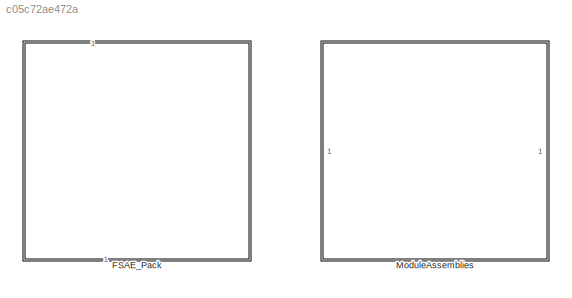
MODEL slx_c05c72ae472a
KIND library
CONFIG AbsTol = auto
CONFIG EnableMultiTasking = off
CONFIG FixedStep = auto
CONFIG MaxStep = auto
CONFIG MinStep = auto
CONFIG RelTol = 1e-3
CONFIG SampleTimeConstraint = Unconstrained
CONFIG SolverName = VariableStepAuto
CONFIG StartTime = 0.0
CONFIG StopTime = 10.0
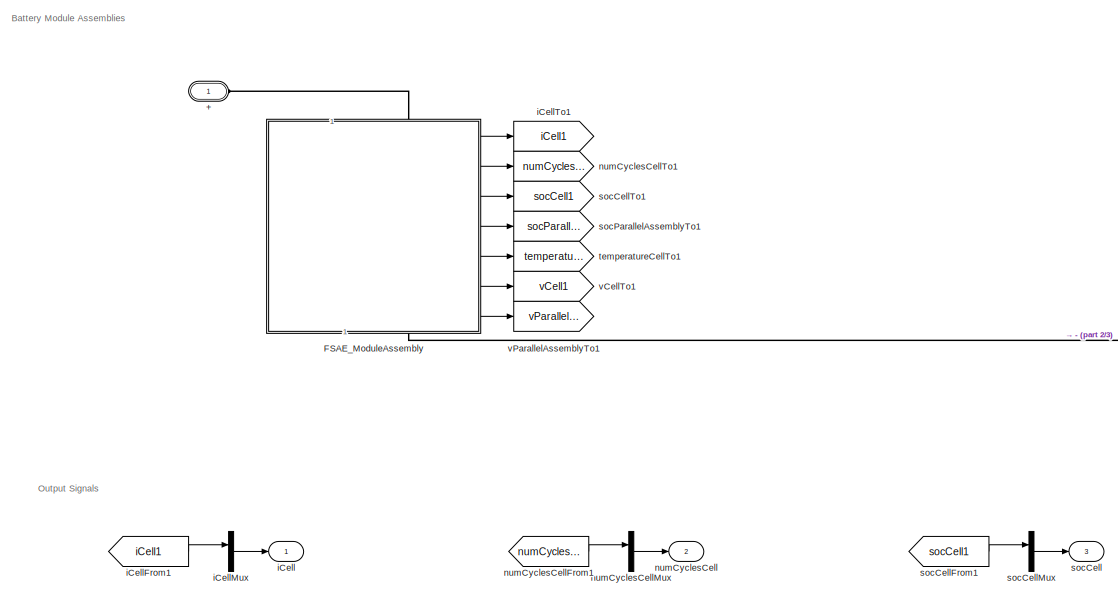
[diagram: FSAE_Pack - part 1/3, left side, full height]
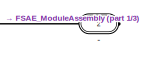
[diagram: FSAE_Pack - part 2/3, top right region]
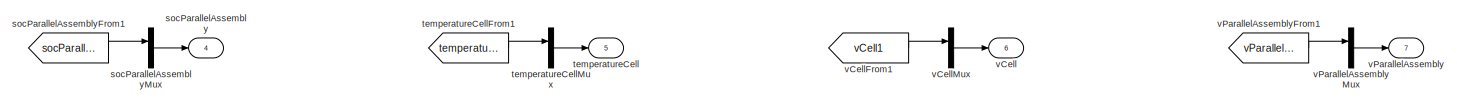
[diagram: FSAE_Pack - part 3/3, bottom right region]
BLOCK [SubSystem] FSAE_Pack
  CopyFcn = battery_builder_rtmsupport('copyfcn',gcbh);
  LoadFcn = battery_builder_rtmsupport('loadfcn',gcbh);
  PortSchema = {"entries":[{"content":{"sides":[{"content":{"connectorIds":["LConn1"]},"type":"ConnectorPlacement.EquallySpacedRectSide","uuid":"046e1df9-68b7-4628-9ede-02f17a769c41"},{"content":{"connectorIds":["RConn1"],"side":"RIGHT"},"type":"ConnectorPlacement.EquallySpacedRectSide","uuid":"785be2e1-0334-4cfd-9311-2715d0bed7f8"},{"content":{"side":"TOP"},"type":"ConnectorPlacement.EquallySpacedRectSide","uui...<+419ch>  <repeated x3 — deduplicated; at blocks: FSAE_Pack, FSAE_ModuleAssembly, ModuleAssemblyType1>
  PreCopyFcn = battery_builder_rtmsupport('precopyfcn',gcbh);
  PreDeleteFcn = battery_builder_rtmsupport('predeletefcn',gcbh);
BLOCK [PMIOPort] FSAE_Pack/+
  Side = Left
BLOCK [PMIOPort] FSAE_Pack/-
  Port = 2
  Side = Right
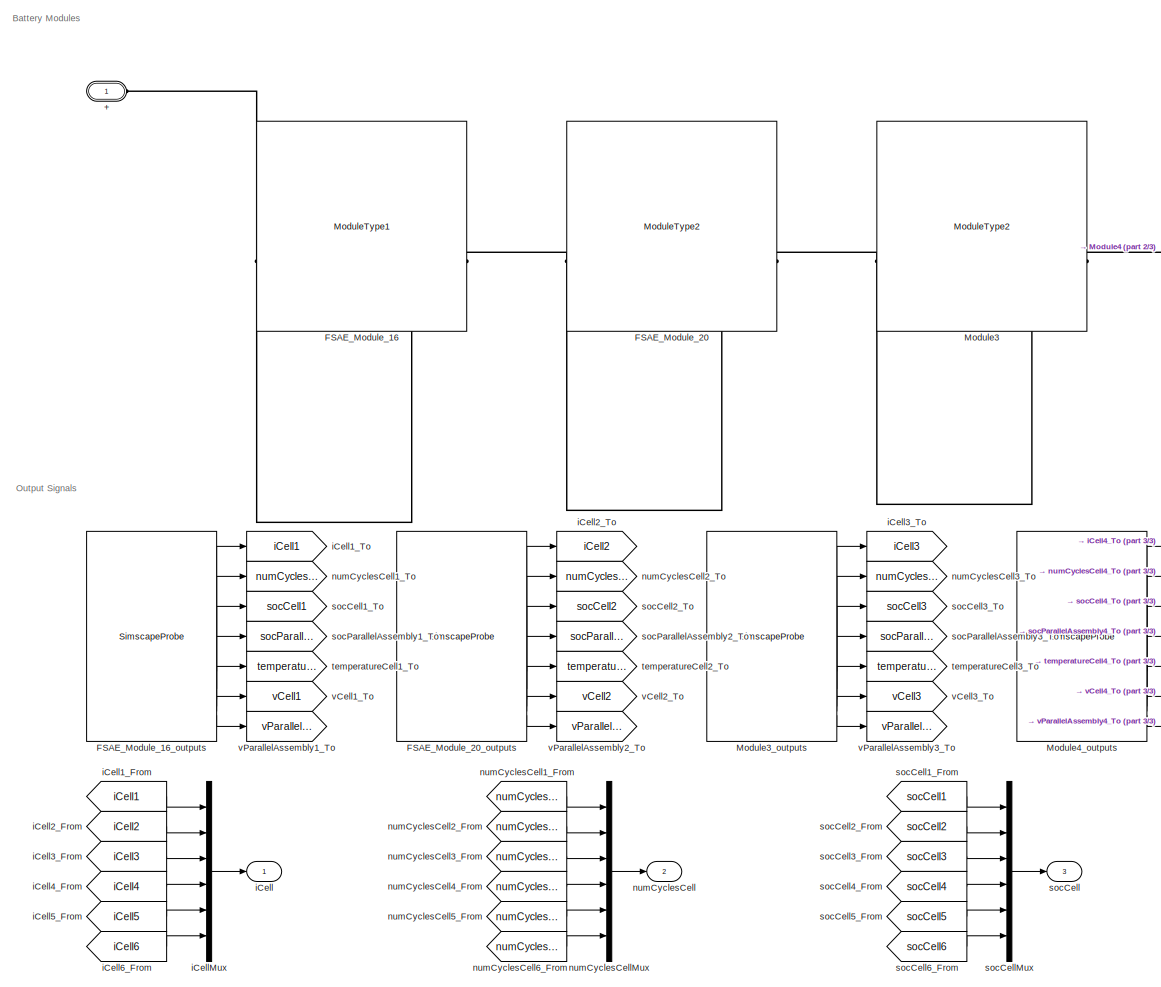
[diagram: FSAE_Pack/FSAE_ModuleAssembly - part 1/3, left side, full height]
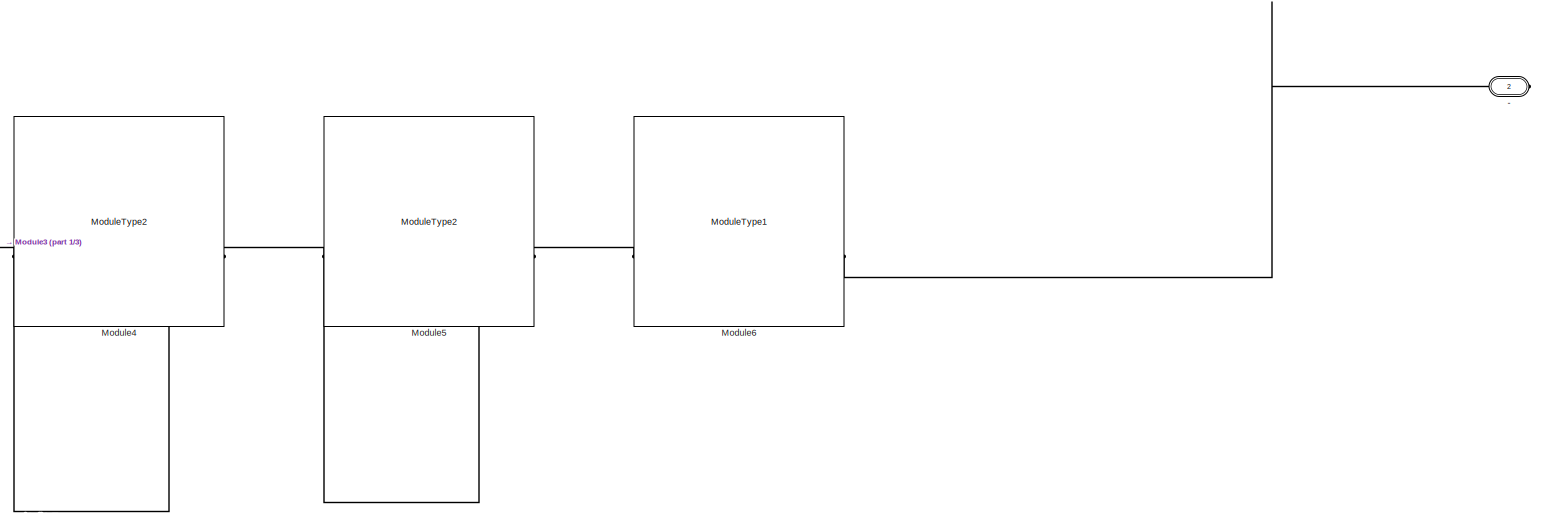
[diagram: FSAE_Pack/FSAE_ModuleAssembly - part 2/3, top right region]
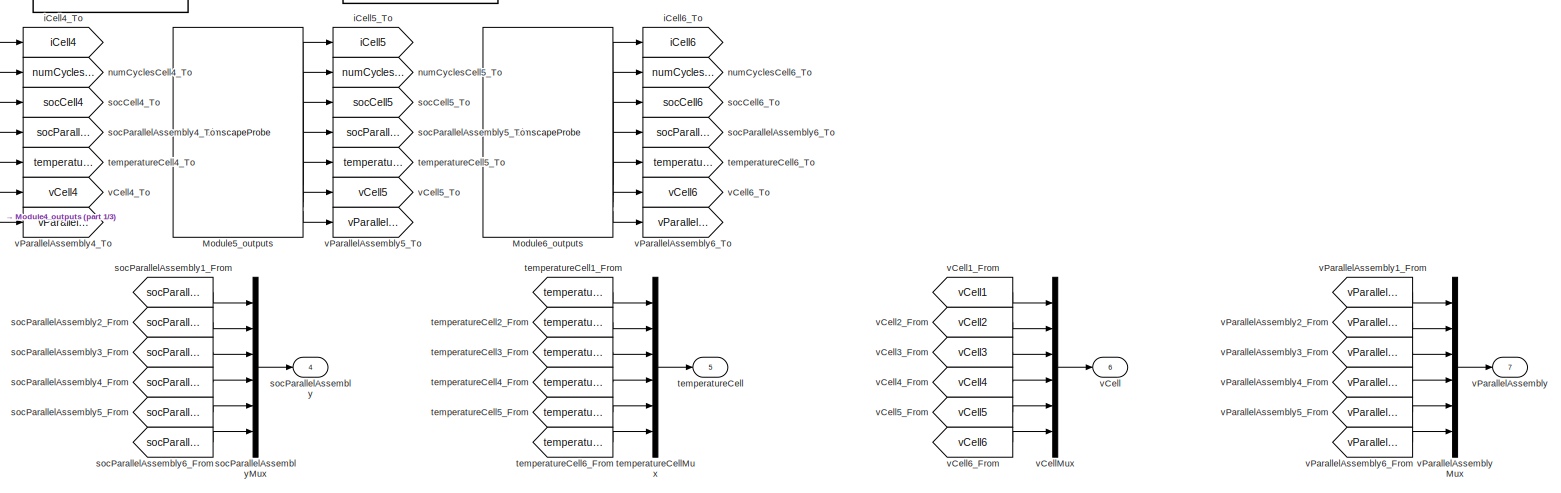
[diagram: FSAE_Pack/FSAE_ModuleAssembly - part 3/3, bottom right region]
BLOCK [SubSystem] FSAE_Pack/FSAE_ModuleAssembly
  CopyFcn = battery_builder_rtmsupport('copyfcn',gcbh);
  LoadFcn = battery_builder_rtmsupport('loadfcn',gcbh);
  PreCopyFcn = battery_builder_rtmsupport('precopyfcn',gcbh);
  PreDeleteFcn = battery_builder_rtmsupport('predeletefcn',gcbh);
BLOCK [PMIOPort] FSAE_Pack/FSAE_ModuleAssembly/+
  Side = Left
BLOCK [PMIOPort] FSAE_Pack/FSAE_ModuleAssembly/-
  Port = 2
  Side = Right
BLOCK [Reference] FSAE_Pack/FSAE_ModuleAssembly/FSAE_Module_16  REF=FSAE_Battery_lib/Modules/ModuleType1
  SourceBlock = FSAE_Battery_lib/Modules/ModuleType1
  SourceType = ModuleType1
BLOCK [SimscapeProbe] FSAE_Pack/FSAE_ModuleAssembly/FSAE_Module_16_outputs
  BoundBlock = 119
  Variables = {"iCell":{"Unit":"A","PortLabel":"iCell","Probing":"ON"},"numCyclesCell":{"Unit":"1","PortLabel":"numCyclesCell","Probing":"ON"},"socCell":{"Unit":"1","PortLabel":"socCell","Probing":"ON"},"socParallelAssembly":{"Unit":"1","PortLabel":"socParallelAssembly","Probing":"ON"},"temperatureCell":{"Unit":"K","PortLabel":"temperatureCell","Probing":"ON"},"vCell":{"Unit":"V","PortLabel":"vCell","Probing":"...<+85ch>  <repeated x12 — deduplicated; at blocks: FSAE_Module_16_outputs, FSAE_Module_20_outputs, Module3_outputs, Module4_outputs, Module5_outputs, Module6_outputs>
BLOCK [Reference] FSAE_Pack/FSAE_ModuleAssembly/FSAE_Module_20  REF=FSAE_Battery_lib/Modules/ModuleType2
  SourceBlock = FSAE_Battery_lib/Modules/ModuleType2
  SourceType = ModuleType2
BLOCK [SimscapeProbe] FSAE_Pack/FSAE_ModuleAssembly/FSAE_Module_20_outputs
  BoundBlock = 121
BLOCK [Reference] FSAE_Pack/FSAE_ModuleAssembly/Module3  REF=FSAE_Battery_lib/Modules/ModuleType2
  SourceBlock = FSAE_Battery_lib/Modules/ModuleType2
  SourceType = ModuleType2
BLOCK [SimscapeProbe] FSAE_Pack/FSAE_ModuleAssembly/Module3_outputs
  BoundBlock = 123
BLOCK [Reference] FSAE_Pack/FSAE_ModuleAssembly/Module4  REF=FSAE_Battery_lib/Modules/ModuleType2
  SourceBlock = FSAE_Battery_lib/Modules/ModuleType2
  SourceType = ModuleType2
BLOCK [SimscapeProbe] FSAE_Pack/FSAE_ModuleAssembly/Module4_outputs
  BoundBlock = 125
BLOCK [Reference] FSAE_Pack/FSAE_ModuleAssembly/Module5  REF=FSAE_Battery_lib/Modules/ModuleType2
  SourceBlock = FSAE_Battery_lib/Modules/ModuleType2
  SourceType = ModuleType2
BLOCK [SimscapeProbe] FSAE_Pack/FSAE_ModuleAssembly/Module5_outputs
  BoundBlock = 127
BLOCK [Reference] FSAE_Pack/FSAE_ModuleAssembly/Module6  REF=FSAE_Battery_lib/Modules/ModuleType1
  SourceBlock = FSAE_Battery_lib/Modules/ModuleType1
  SourceType = ModuleType1
BLOCK [SimscapeProbe] FSAE_Pack/FSAE_ModuleAssembly/Module6_outputs
  BoundBlock = 129
BLOCK [Outport] FSAE_Pack/FSAE_ModuleAssembly/iCell
BLOCK [From] FSAE_Pack/FSAE_ModuleAssembly/iCell1_From
  GotoTag = iCell1
BLOCK [Goto] FSAE_Pack/FSAE_ModuleAssembly/iCell1_To
  GotoTag = iCell1
BLOCK [From] FSAE_Pack/FSAE_ModuleAssembly/iCell2_From
  GotoTag = iCell2
BLOCK [Goto] FSAE_Pack/FSAE_ModuleAssembly/iCell2_To
  GotoTag = iCell2
BLOCK [From] FSAE_Pack/FSAE_ModuleAssembly/iCell3_From
  GotoTag = iCell3
BLOCK [Goto] FSAE_Pack/FSAE_ModuleAssembly/iCell3_To
  GotoTag = iCell3
BLOCK [From] FSAE_Pack/FSAE_ModuleAssembly/iCell4_From
  GotoTag = iCell4
BLOCK [Goto] FSAE_Pack/FSAE_ModuleAssembly/iCell4_To
  GotoTag = iCell4
BLOCK [From] FSAE_Pack/FSAE_ModuleAssembly/iCell5_From
  GotoTag = iCell5
BLOCK [Goto] FSAE_Pack/FSAE_ModuleAssembly/iCell5_To
  GotoTag = iCell5
BLOCK [From] FSAE_Pack/FSAE_ModuleAssembly/iCell6_From
  GotoTag = iCell6
BLOCK [Goto] FSAE_Pack/FSAE_ModuleAssembly/iCell6_To
  GotoTag = iCell6
BLOCK [Mux] FSAE_Pack/FSAE_ModuleAssembly/iCellMux
  DisplayOption = bar
  Inputs = 6
BLOCK [Outport] FSAE_Pack/FSAE_ModuleAssembly/numCyclesCell
  Port = 2
BLOCK [From] FSAE_Pack/FSAE_ModuleAssembly/numCyclesCell1_From
  GotoTag = numCyclesCell1
BLOCK [Goto] FSAE_Pack/FSAE_ModuleAssembly/numCyclesCell1_To
  GotoTag = numCyclesCell1
BLOCK [From] FSAE_Pack/FSAE_ModuleAssembly/numCyclesCell2_From
  GotoTag = numCyclesCell2
BLOCK [Goto] FSAE_Pack/FSAE_ModuleAssembly/numCyclesCell2_To
  GotoTag = numCyclesCell2
BLOCK [From] FSAE_Pack/FSAE_ModuleAssembly/numCyclesCell3_From
  GotoTag = numCyclesCell3
BLOCK [Goto] FSAE_Pack/FSAE_ModuleAssembly/numCyclesCell3_To
  GotoTag = numCyclesCell3
BLOCK [From] FSAE_Pack/FSAE_ModuleAssembly/numCyclesCell4_From
  GotoTag = numCyclesCell4
BLOCK [Goto] FSAE_Pack/FSAE_ModuleAssembly/numCyclesCell4_To
  GotoTag = numCyclesCell4
BLOCK [From] FSAE_Pack/FSAE_ModuleAssembly/numCyclesCell5_From
  GotoTag = numCyclesCell5
BLOCK [Goto] FSAE_Pack/FSAE_ModuleAssembly/numCyclesCell5_To
  GotoTag = numCyclesCell5
BLOCK [From] FSAE_Pack/FSAE_ModuleAssembly/numCyclesCell6_From
  GotoTag = numCyclesCell6
BLOCK [Goto] FSAE_Pack/FSAE_ModuleAssembly/numCyclesCell6_To
  GotoTag = numCyclesCell6
BLOCK [Mux] FSAE_Pack/FSAE_ModuleAssembly/numCyclesCellMux
  DisplayOption = bar
  Inputs = 6
BLOCK [Outport] FSAE_Pack/FSAE_ModuleAssembly/socCell
  Port = 3
BLOCK [From] FSAE_Pack/FSAE_ModuleAssembly/socCell1_From
  GotoTag = socCell1
BLOCK [Goto] FSAE_Pack/FSAE_ModuleAssembly/socCell1_To
  GotoTag = socCell1
BLOCK [From] FSAE_Pack/FSAE_ModuleAssembly/socCell2_From
  GotoTag = socCell2
BLOCK [Goto] FSAE_Pack/FSAE_ModuleAssembly/socCell2_To
  GotoTag = socCell2
BLOCK [From] FSAE_Pack/FSAE_ModuleAssembly/socCell3_From
  GotoTag = socCell3
BLOCK [Goto] FSAE_Pack/FSAE_ModuleAssembly/socCell3_To
  GotoTag = socCell3
BLOCK [From] FSAE_Pack/FSAE_ModuleAssembly/socCell4_From
  GotoTag = socCell4
BLOCK [Goto] FSAE_Pack/FSAE_ModuleAssembly/socCell4_To
  GotoTag = socCell4
BLOCK [From] FSAE_Pack/FSAE_ModuleAssembly/socCell5_From
  GotoTag = socCell5
BLOCK [Goto] FSAE_Pack/FSAE_ModuleAssembly/socCell5_To
  GotoTag = socCell5
BLOCK [From] FSAE_Pack/FSAE_ModuleAssembly/socCell6_From
  GotoTag = socCell6
BLOCK [Goto] FSAE_Pack/FSAE_ModuleAssembly/socCell6_To
  GotoTag = socCell6
BLOCK [Mux] FSAE_Pack/FSAE_ModuleAssembly/socCellMux
  DisplayOption = bar
  Inputs = 6
BLOCK [Outport] FSAE_Pack/FSAE_ModuleAssembly/socParallelAssembly
  Port = 4
BLOCK [From] FSAE_Pack/FSAE_ModuleAssembly/socParallelAssembly1_From
  GotoTag = socParallelAssembly1
BLOCK [Goto] FSAE_Pack/FSAE_ModuleAssembly/socParallelAssembly1_To
  GotoTag = socParallelAssembly1
BLOCK [From] FSAE_Pack/FSAE_ModuleAssembly/socParallelAssembly2_From
  GotoTag = socParallelAssembly2
BLOCK [Goto] FSAE_Pack/FSAE_ModuleAssembly/socParallelAssembly2_To
  GotoTag = socParallelAssembly2
BLOCK [From] FSAE_Pack/FSAE_ModuleAssembly/socParallelAssembly3_From
  GotoTag = socParallelAssembly3
BLOCK [Goto] FSAE_Pack/FSAE_ModuleAssembly/socParallelAssembly3_To
  GotoTag = socParallelAssembly3
BLOCK [From] FSAE_Pack/FSAE_ModuleAssembly/socParallelAssembly4_From
  GotoTag = socParallelAssembly4
BLOCK [Goto] FSAE_Pack/FSAE_ModuleAssembly/socParallelAssembly4_To
  GotoTag = socParallelAssembly4
BLOCK [From] FSAE_Pack/FSAE_ModuleAssembly/socParallelAssembly5_From
  GotoTag = socParallelAssembly5
BLOCK [Goto] FSAE_Pack/FSAE_ModuleAssembly/socParallelAssembly5_To
  GotoTag = socParallelAssembly5
BLOCK [From] FSAE_Pack/FSAE_ModuleAssembly/socParallelAssembly6_From
  GotoTag = socParallelAssembly6
BLOCK [Goto] FSAE_Pack/FSAE_ModuleAssembly/socParallelAssembly6_To
  GotoTag = socParallelAssembly6
BLOCK [Mux] FSAE_Pack/FSAE_ModuleAssembly/socParallelAssemblyMux
  DisplayOption = bar
  Inputs = 6
BLOCK [Outport] FSAE_Pack/FSAE_ModuleAssembly/temperatureCell
  Port = 5
BLOCK [From] FSAE_Pack/FSAE_ModuleAssembly/temperatureCell1_From
  GotoTag = temperatureCell1
BLOCK [Goto] FSAE_Pack/FSAE_ModuleAssembly/temperatureCell1_To
  GotoTag = temperatureCell1
BLOCK [From] FSAE_Pack/FSAE_ModuleAssembly/temperatureCell2_From
  GotoTag = temperatureCell2
BLOCK [Goto] FSAE_Pack/FSAE_ModuleAssembly/temperatureCell2_To
  GotoTag = temperatureCell2
BLOCK [From] FSAE_Pack/FSAE_ModuleAssembly/temperatureCell3_From
  GotoTag = temperatureCell3
BLOCK [Goto] FSAE_Pack/FSAE_ModuleAssembly/temperatureCell3_To
  GotoTag = temperatureCell3
BLOCK [From] FSAE_Pack/FSAE_ModuleAssembly/temperatureCell4_From
  GotoTag = temperatureCell4
BLOCK [Goto] FSAE_Pack/FSAE_ModuleAssembly/temperatureCell4_To
  GotoTag = temperatureCell4
BLOCK [From] FSAE_Pack/FSAE_ModuleAssembly/temperatureCell5_From
  GotoTag = temperatureCell5
BLOCK [Goto] FSAE_Pack/FSAE_ModuleAssembly/temperatureCell5_To
  GotoTag = temperatureCell5
BLOCK [From] FSAE_Pack/FSAE_ModuleAssembly/temperatureCell6_From
  GotoTag = temperatureCell6
BLOCK [Goto] FSAE_Pack/FSAE_ModuleAssembly/temperatureCell6_To
  GotoTag = temperatureCell6
BLOCK [Mux] FSAE_Pack/FSAE_ModuleAssembly/temperatureCellMux
  DisplayOption = bar
  Inputs = 6
BLOCK [Outport] FSAE_Pack/FSAE_ModuleAssembly/vCell
  Port = 6
BLOCK [From] FSAE_Pack/FSAE_ModuleAssembly/vCell1_From
  GotoTag = vCell1
BLOCK [Goto] FSAE_Pack/FSAE_ModuleAssembly/vCell1_To
  GotoTag = vCell1
BLOCK [From] FSAE_Pack/FSAE_ModuleAssembly/vCell2_From
  GotoTag = vCell2
BLOCK [Goto] FSAE_Pack/FSAE_ModuleAssembly/vCell2_To
  GotoTag = vCell2
BLOCK [From] FSAE_Pack/FSAE_ModuleAssembly/vCell3_From
  GotoTag = vCell3
BLOCK [Goto] FSAE_Pack/FSAE_ModuleAssembly/vCell3_To
  GotoTag = vCell3
BLOCK [From] FSAE_Pack/FSAE_ModuleAssembly/vCell4_From
  GotoTag = vCell4
BLOCK [Goto] FSAE_Pack/FSAE_ModuleAssembly/vCell4_To
  GotoTag = vCell4
BLOCK [From] FSAE_Pack/FSAE_ModuleAssembly/vCell5_From
  GotoTag = vCell5
BLOCK [Goto] FSAE_Pack/FSAE_ModuleAssembly/vCell5_To
  GotoTag = vCell5
BLOCK [From] FSAE_Pack/FSAE_ModuleAssembly/vCell6_From
  GotoTag = vCell6
BLOCK [Goto] FSAE_Pack/FSAE_ModuleAssembly/vCell6_To
  GotoTag = vCell6
BLOCK [Mux] FSAE_Pack/FSAE_ModuleAssembly/vCellMux
  DisplayOption = bar
  Inputs = 6
BLOCK [Outport] FSAE_Pack/FSAE_ModuleAssembly/vParallelAssembly
  Port = 7
BLOCK [From] FSAE_Pack/FSAE_ModuleAssembly/vParallelAssembly1_From
  GotoTag = vParallelAssembly1
BLOCK [Goto] FSAE_Pack/FSAE_ModuleAssembly/vParallelAssembly1_To
  GotoTag = vParallelAssembly1
BLOCK [From] FSAE_Pack/FSAE_ModuleAssembly/vParallelAssembly2_From
  GotoTag = vParallelAssembly2
BLOCK [Goto] FSAE_Pack/FSAE_ModuleAssembly/vParallelAssembly2_To
  GotoTag = vParallelAssembly2
BLOCK [From] FSAE_Pack/FSAE_ModuleAssembly/vParallelAssembly3_From
  GotoTag = vParallelAssembly3
BLOCK [Goto] FSAE_Pack/FSAE_ModuleAssembly/vParallelAssembly3_To
  GotoTag = vParallelAssembly3
BLOCK [From] FSAE_Pack/FSAE_ModuleAssembly/vParallelAssembly4_From
  GotoTag = vParallelAssembly4
BLOCK [Goto] FSAE_Pack/FSAE_ModuleAssembly/vParallelAssembly4_To
  GotoTag = vParallelAssembly4
BLOCK [From] FSAE_Pack/FSAE_ModuleAssembly/vParallelAssembly5_From
  GotoTag = vParallelAssembly5
BLOCK [Goto] FSAE_Pack/FSAE_ModuleAssembly/vParallelAssembly5_To
  GotoTag = vParallelAssembly5
BLOCK [From] FSAE_Pack/FSAE_ModuleAssembly/vParallelAssembly6_From
  GotoTag = vParallelAssembly6
BLOCK [Goto] FSAE_Pack/FSAE_ModuleAssembly/vParallelAssembly6_To
  GotoTag = vParallelAssembly6
BLOCK [Mux] FSAE_Pack/FSAE_ModuleAssembly/vParallelAssemblyMux
  DisplayOption = bar
  Inputs = 6
BLOCK [Outport] FSAE_Pack/iCell
BLOCK [From] FSAE_Pack/iCellFrom1
  GotoTag = iCell1
BLOCK [Mux] FSAE_Pack/iCellMux
  DisplayOption = bar
  Inputs = 1
BLOCK [Goto] FSAE_Pack/iCellTo1
  GotoTag = iCell1
BLOCK [Outport] FSAE_Pack/numCyclesCell
  Port = 2
BLOCK [From] FSAE_Pack/numCyclesCellFrom1
  GotoTag = numCyclesCell1
BLOCK [Mux] FSAE_Pack/numCyclesCellMux
  DisplayOption = bar
  Inputs = 1
BLOCK [Goto] FSAE_Pack/numCyclesCellTo1
  GotoTag = numCyclesCell1
BLOCK [Outport] FSAE_Pack/socCell
  Port = 3
BLOCK [From] FSAE_Pack/socCellFrom1
  GotoTag = socCell1
BLOCK [Mux] FSAE_Pack/socCellMux
  DisplayOption = bar
  Inputs = 1
BLOCK [Goto] FSAE_Pack/socCellTo1
  GotoTag = socCell1
BLOCK [Outport] FSAE_Pack/socParallelAssembly
  Port = 4
BLOCK [From] FSAE_Pack/socParallelAssemblyFrom1
  GotoTag = socParallelAssembly1
BLOCK [Mux] FSAE_Pack/socParallelAssemblyMux
  DisplayOption = bar
  Inputs = 1
BLOCK [Goto] FSAE_Pack/socParallelAssemblyTo1
  GotoTag = socParallelAssembly1
BLOCK [Outport] FSAE_Pack/temperatureCell
  Port = 5
BLOCK [From] FSAE_Pack/temperatureCellFrom1
  GotoTag = temperatureCell1
BLOCK [Mux] FSAE_Pack/temperatureCellMux
  DisplayOption = bar
  Inputs = 1
BLOCK [Goto] FSAE_Pack/temperatureCellTo1
  GotoTag = temperatureCell1
BLOCK [Outport] FSAE_Pack/vCell
  Port = 6
BLOCK [From] FSAE_Pack/vCellFrom1
  GotoTag = vCell1
BLOCK [Mux] FSAE_Pack/vCellMux
  DisplayOption = bar
  Inputs = 1
BLOCK [Goto] FSAE_Pack/vCellTo1
  GotoTag = vCell1
BLOCK [Outport] FSAE_Pack/vParallelAssembly
  Port = 7
BLOCK [From] FSAE_Pack/vParallelAssemblyFrom1
  GotoTag = vParallelAssembly1
BLOCK [Mux] FSAE_Pack/vParallelAssemblyMux
  DisplayOption = bar
  Inputs = 1
BLOCK [Goto] FSAE_Pack/vParallelAssemblyTo1
  GotoTag = vParallelAssembly1
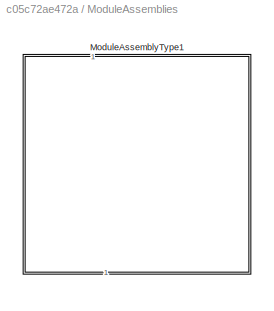
BLOCK [SubSystem] ModuleAssemblies
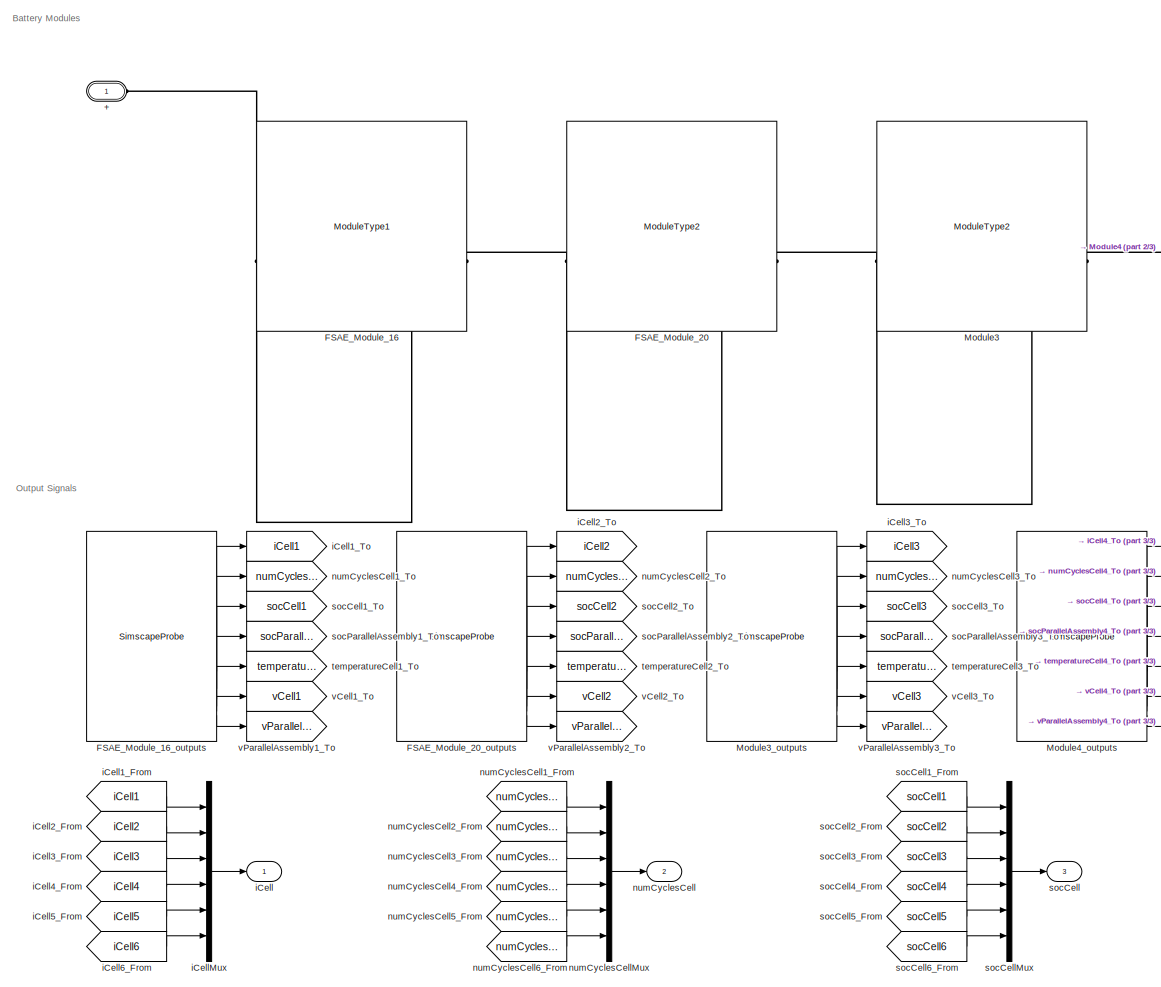
[diagram: ModuleAssemblies/ModuleAssemblyType1 - part 1/3, left side, full height]
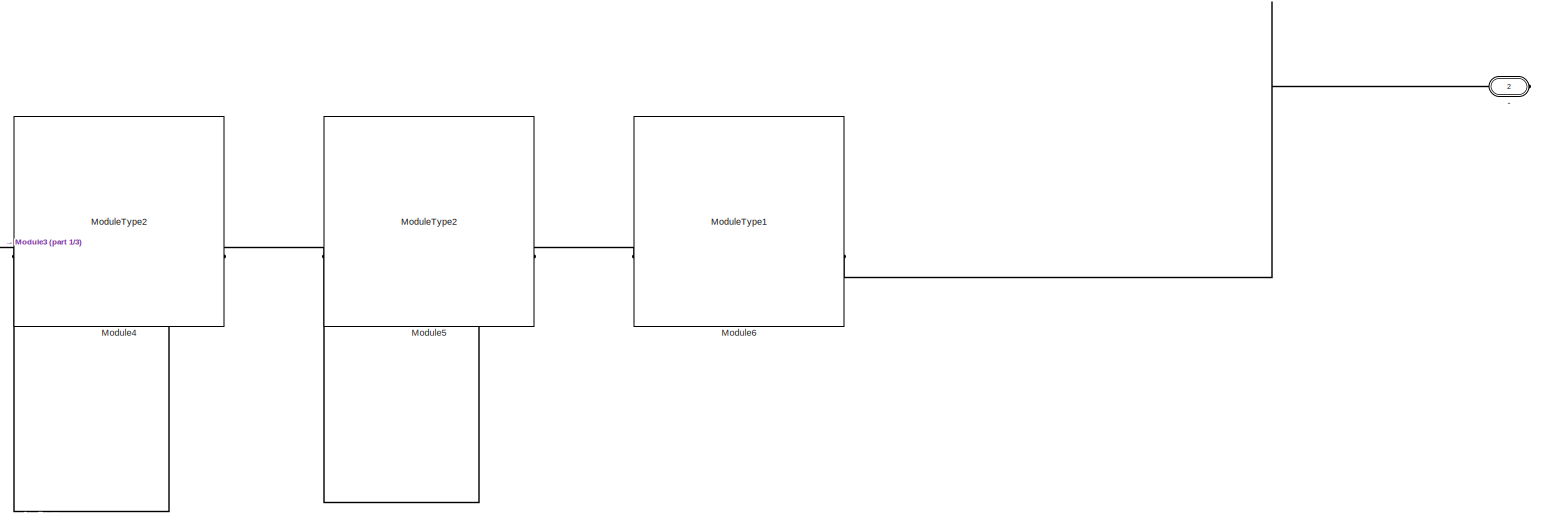
[diagram: ModuleAssemblies/ModuleAssemblyType1 - part 2/3, top right region]
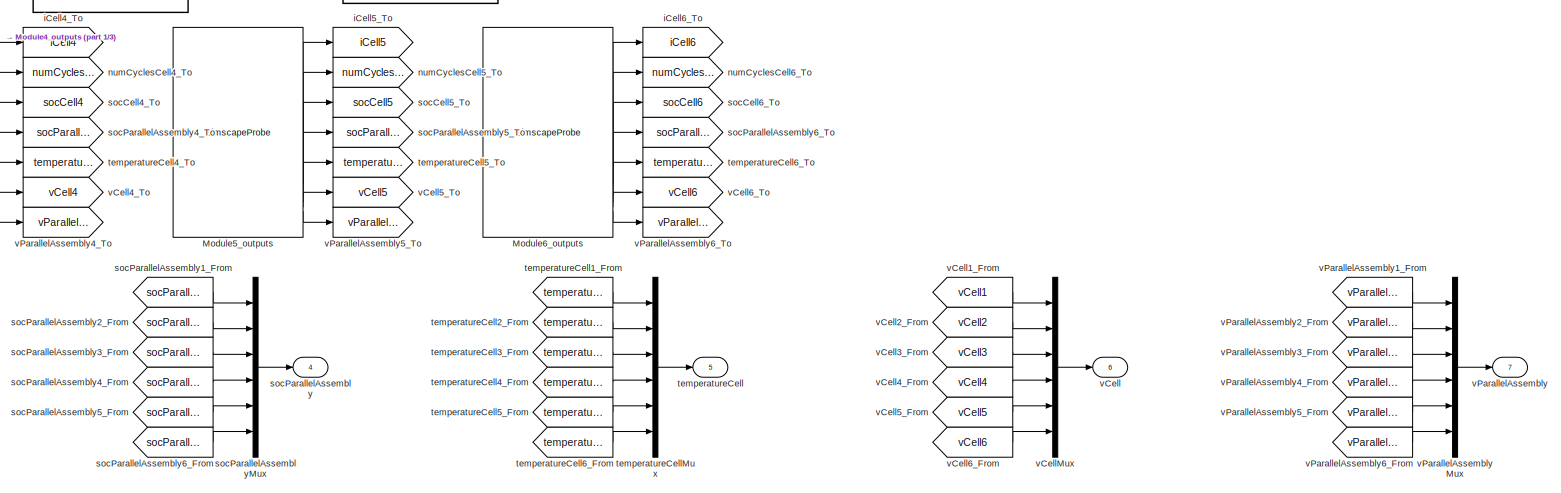
[diagram: ModuleAssemblies/ModuleAssemblyType1 - part 3/3, bottom right region]
BLOCK [SubSystem] ModuleAssemblies/ModuleAssemblyType1
  CopyFcn = battery_builder_rtmsupport('copyfcn',gcbh);
  LoadFcn = battery_builder_rtmsupport('loadfcn',gcbh);
  PreCopyFcn = battery_builder_rtmsupport('precopyfcn',gcbh);
  PreDeleteFcn = battery_builder_rtmsupport('predeletefcn',gcbh);
BLOCK [PMIOPort] ModuleAssemblies/ModuleAssemblyType1/+
  Side = Left
BLOCK [PMIOPort] ModuleAssemblies/ModuleAssemblyType1/-
  Port = 2
  Side = Right
BLOCK [Reference] ModuleAssemblies/ModuleAssemblyType1/FSAE_Module_16  REF=FSAE_Battery_lib/Modules/ModuleType1
  SourceBlock = FSAE_Battery_lib/Modules/ModuleType1
  SourceType = ModuleType1
BLOCK [SimscapeProbe] ModuleAssemblies/ModuleAssemblyType1/FSAE_Module_16_outputs
  BoundBlock = 3
BLOCK [Reference] ModuleAssemblies/ModuleAssemblyType1/FSAE_Module_20  REF=FSAE_Battery_lib/Modules/ModuleType2
  SourceBlock = FSAE_Battery_lib/Modules/ModuleType2
  SourceType = ModuleType2
BLOCK [SimscapeProbe] ModuleAssemblies/ModuleAssemblyType1/FSAE_Module_20_outputs
  BoundBlock = 4
BLOCK [Reference] ModuleAssemblies/ModuleAssemblyType1/Module3  REF=FSAE_Battery_lib/Modules/ModuleType2
  SourceBlock = FSAE_Battery_lib/Modules/ModuleType2
  SourceType = ModuleType2
BLOCK [SimscapeProbe] ModuleAssemblies/ModuleAssemblyType1/Module3_outputs
  BoundBlock = 5
BLOCK [Reference] ModuleAssemblies/ModuleAssemblyType1/Module4  REF=FSAE_Battery_lib/Modules/ModuleType2
  SourceBlock = FSAE_Battery_lib/Modules/ModuleType2
  SourceType = ModuleType2
BLOCK [SimscapeProbe] ModuleAssemblies/ModuleAssemblyType1/Module4_outputs
  BoundBlock = 6
BLOCK [Reference] ModuleAssemblies/ModuleAssemblyType1/Module5  REF=FSAE_Battery_lib/Modules/ModuleType2
  SourceBlock = FSAE_Battery_lib/Modules/ModuleType2
  SourceType = ModuleType2
BLOCK [SimscapeProbe] ModuleAssemblies/ModuleAssemblyType1/Module5_outputs
  BoundBlock = 7
BLOCK [Reference] ModuleAssemblies/ModuleAssemblyType1/Module6  REF=FSAE_Battery_lib/Modules/ModuleType1
  SourceBlock = FSAE_Battery_lib/Modules/ModuleType1
  SourceType = ModuleType1
BLOCK [SimscapeProbe] ModuleAssemblies/ModuleAssemblyType1/Module6_outputs
  BoundBlock = 8
BLOCK [Outport] ModuleAssemblies/ModuleAssemblyType1/iCell
BLOCK [From] ModuleAssemblies/ModuleAssemblyType1/iCell1_From
  GotoTag = iCell1
BLOCK [Goto] ModuleAssemblies/ModuleAssemblyType1/iCell1_To
  GotoTag = iCell1
BLOCK [From] ModuleAssemblies/ModuleAssemblyType1/iCell2_From
  GotoTag = iCell2
BLOCK [Goto] ModuleAssemblies/ModuleAssemblyType1/iCell2_To
  GotoTag = iCell2
BLOCK [From] ModuleAssemblies/ModuleAssemblyType1/iCell3_From
  GotoTag = iCell3
BLOCK [Goto] ModuleAssemblies/ModuleAssemblyType1/iCell3_To
  GotoTag = iCell3
BLOCK [From] ModuleAssemblies/ModuleAssemblyType1/iCell4_From
  GotoTag = iCell4
BLOCK [Goto] ModuleAssemblies/ModuleAssemblyType1/iCell4_To
  GotoTag = iCell4
BLOCK [From] ModuleAssemblies/ModuleAssemblyType1/iCell5_From
  GotoTag = iCell5
BLOCK [Goto] ModuleAssemblies/ModuleAssemblyType1/iCell5_To
  GotoTag = iCell5
BLOCK [From] ModuleAssemblies/ModuleAssemblyType1/iCell6_From
  GotoTag = iCell6
BLOCK [Goto] ModuleAssemblies/ModuleAssemblyType1/iCell6_To
  GotoTag = iCell6
BLOCK [Mux] ModuleAssemblies/ModuleAssemblyType1/iCellMux
  DisplayOption = bar
  Inputs = 6
BLOCK [Outport] ModuleAssemblies/ModuleAssemblyType1/numCyclesCell
  Port = 2
BLOCK [From] ModuleAssemblies/ModuleAssemblyType1/numCyclesCell1_From
  GotoTag = numCyclesCell1
BLOCK [Goto] ModuleAssemblies/ModuleAssemblyType1/numCyclesCell1_To
  GotoTag = numCyclesCell1
BLOCK [From] ModuleAssemblies/ModuleAssemblyType1/numCyclesCell2_From
  GotoTag = numCyclesCell2
BLOCK [Goto] ModuleAssemblies/ModuleAssemblyType1/numCyclesCell2_To
  GotoTag = numCyclesCell2
BLOCK [From] ModuleAssemblies/ModuleAssemblyType1/numCyclesCell3_From
  GotoTag = numCyclesCell3
BLOCK [Goto] ModuleAssemblies/ModuleAssemblyType1/numCyclesCell3_To
  GotoTag = numCyclesCell3
BLOCK [From] ModuleAssemblies/ModuleAssemblyType1/numCyclesCell4_From
  GotoTag = numCyclesCell4
BLOCK [Goto] ModuleAssemblies/ModuleAssemblyType1/numCyclesCell4_To
  GotoTag = numCyclesCell4
BLOCK [From] ModuleAssemblies/ModuleAssemblyType1/numCyclesCell5_From
  GotoTag = numCyclesCell5
BLOCK [Goto] ModuleAssemblies/ModuleAssemblyType1/numCyclesCell5_To
  GotoTag = numCyclesCell5
BLOCK [From] ModuleAssemblies/ModuleAssemblyType1/numCyclesCell6_From
  GotoTag = numCyclesCell6
BLOCK [Goto] ModuleAssemblies/ModuleAssemblyType1/numCyclesCell6_To
  GotoTag = numCyclesCell6
BLOCK [Mux] ModuleAssemblies/ModuleAssemblyType1/numCyclesCellMux
  DisplayOption = bar
  Inputs = 6
BLOCK [Outport] ModuleAssemblies/ModuleAssemblyType1/socCell
  Port = 3
BLOCK [From] ModuleAssemblies/ModuleAssemblyType1/socCell1_From
  GotoTag = socCell1
BLOCK [Goto] ModuleAssemblies/ModuleAssemblyType1/socCell1_To
  GotoTag = socCell1
BLOCK [From] ModuleAssemblies/ModuleAssemblyType1/socCell2_From
  GotoTag = socCell2
BLOCK [Goto] ModuleAssemblies/ModuleAssemblyType1/socCell2_To
  GotoTag = socCell2
BLOCK [From] ModuleAssemblies/ModuleAssemblyType1/socCell3_From
  GotoTag = socCell3
BLOCK [Goto] ModuleAssemblies/ModuleAssemblyType1/socCell3_To
  GotoTag = socCell3
BLOCK [From] ModuleAssemblies/ModuleAssemblyType1/socCell4_From
  GotoTag = socCell4
BLOCK [Goto] ModuleAssemblies/ModuleAssemblyType1/socCell4_To
  GotoTag = socCell4
BLOCK [From] ModuleAssemblies/ModuleAssemblyType1/socCell5_From
  GotoTag = socCell5
BLOCK [Goto] ModuleAssemblies/ModuleAssemblyType1/socCell5_To
  GotoTag = socCell5
BLOCK [From] ModuleAssemblies/ModuleAssemblyType1/socCell6_From
  GotoTag = socCell6
BLOCK [Goto] ModuleAssemblies/ModuleAssemblyType1/socCell6_To
  GotoTag = socCell6
BLOCK [Mux] ModuleAssemblies/ModuleAssemblyType1/socCellMux
  DisplayOption = bar
  Inputs = 6
BLOCK [Outport] ModuleAssemblies/ModuleAssemblyType1/socParallelAssembly
  Port = 4
BLOCK [From] ModuleAssemblies/ModuleAssemblyType1/socParallelAssembly1_From
  GotoTag = socParallelAssembly1
BLOCK [Goto] ModuleAssemblies/ModuleAssemblyType1/socParallelAssembly1_To
  GotoTag = socParallelAssembly1
BLOCK [From] ModuleAssemblies/ModuleAssemblyType1/socParallelAssembly2_From
  GotoTag = socParallelAssembly2
BLOCK [Goto] ModuleAssemblies/ModuleAssemblyType1/socParallelAssembly2_To
  GotoTag = socParallelAssembly2
BLOCK [From] ModuleAssemblies/ModuleAssemblyType1/socParallelAssembly3_From
  GotoTag = socParallelAssembly3
BLOCK [Goto] ModuleAssemblies/ModuleAssemblyType1/socParallelAssembly3_To
  GotoTag = socParallelAssembly3
BLOCK [From] ModuleAssemblies/ModuleAssemblyType1/socParallelAssembly4_From
  GotoTag = socParallelAssembly4
BLOCK [Goto] ModuleAssemblies/ModuleAssemblyType1/socParallelAssembly4_To
  GotoTag = socParallelAssembly4
BLOCK [From] ModuleAssemblies/ModuleAssemblyType1/socParallelAssembly5_From
  GotoTag = socParallelAssembly5
BLOCK [Goto] ModuleAssemblies/ModuleAssemblyType1/socParallelAssembly5_To
  GotoTag = socParallelAssembly5
BLOCK [From] ModuleAssemblies/ModuleAssemblyType1/socParallelAssembly6_From
  GotoTag = socParallelAssembly6
BLOCK [Goto] ModuleAssemblies/ModuleAssemblyType1/socParallelAssembly6_To
  GotoTag = socParallelAssembly6
BLOCK [Mux] ModuleAssemblies/ModuleAssemblyType1/socParallelAssemblyMux
  DisplayOption = bar
  Inputs = 6
BLOCK [Outport] ModuleAssemblies/ModuleAssemblyType1/temperatureCell
  Port = 5
BLOCK [From] ModuleAssemblies/ModuleAssemblyType1/temperatureCell1_From
  GotoTag = temperatureCell1
BLOCK [Goto] ModuleAssemblies/ModuleAssemblyType1/temperatureCell1_To
  GotoTag = temperatureCell1
BLOCK [From] ModuleAssemblies/ModuleAssemblyType1/temperatureCell2_From
  GotoTag = temperatureCell2
BLOCK [Goto] ModuleAssemblies/ModuleAssemblyType1/temperatureCell2_To
  GotoTag = temperatureCell2
BLOCK [From] ModuleAssemblies/ModuleAssemblyType1/temperatureCell3_From
  GotoTag = temperatureCell3
BLOCK [Goto] ModuleAssemblies/ModuleAssemblyType1/temperatureCell3_To
  GotoTag = temperatureCell3
BLOCK [From] ModuleAssemblies/ModuleAssemblyType1/temperatureCell4_From
  GotoTag = temperatureCell4
BLOCK [Goto] ModuleAssemblies/ModuleAssemblyType1/temperatureCell4_To
  GotoTag = temperatureCell4
BLOCK [From] ModuleAssemblies/ModuleAssemblyType1/temperatureCell5_From
  GotoTag = temperatureCell5
BLOCK [Goto] ModuleAssemblies/ModuleAssemblyType1/temperatureCell5_To
  GotoTag = temperatureCell5
BLOCK [From] ModuleAssemblies/ModuleAssemblyType1/temperatureCell6_From
  GotoTag = temperatureCell6
BLOCK [Goto] ModuleAssemblies/ModuleAssemblyType1/temperatureCell6_To
  GotoTag = temperatureCell6
BLOCK [Mux] ModuleAssemblies/ModuleAssemblyType1/temperatureCellMux
  DisplayOption = bar
  Inputs = 6
BLOCK [Outport] ModuleAssemblies/ModuleAssemblyType1/vCell
  Port = 6
BLOCK [From] ModuleAssemblies/ModuleAssemblyType1/vCell1_From
  GotoTag = vCell1
BLOCK [Goto] ModuleAssemblies/ModuleAssemblyType1/vCell1_To
  GotoTag = vCell1
BLOCK [From] ModuleAssemblies/ModuleAssemblyType1/vCell2_From
  GotoTag = vCell2
BLOCK [Goto] ModuleAssemblies/ModuleAssemblyType1/vCell2_To
  GotoTag = vCell2
BLOCK [From] ModuleAssemblies/ModuleAssemblyType1/vCell3_From
  GotoTag = vCell3
BLOCK [Goto] ModuleAssemblies/ModuleAssemblyType1/vCell3_To
  GotoTag = vCell3
BLOCK [From] ModuleAssemblies/ModuleAssemblyType1/vCell4_From
  GotoTag = vCell4
BLOCK [Goto] ModuleAssemblies/ModuleAssemblyType1/vCell4_To
  GotoTag = vCell4
BLOCK [From] ModuleAssemblies/ModuleAssemblyType1/vCell5_From
  GotoTag = vCell5
BLOCK [Goto] ModuleAssemblies/ModuleAssemblyType1/vCell5_To
  GotoTag = vCell5
BLOCK [From] ModuleAssemblies/ModuleAssemblyType1/vCell6_From
  GotoTag = vCell6
BLOCK [Goto] ModuleAssemblies/ModuleAssemblyType1/vCell6_To
  GotoTag = vCell6
BLOCK [Mux] ModuleAssemblies/ModuleAssemblyType1/vCellMux
  DisplayOption = bar
  Inputs = 6
BLOCK [Outport] ModuleAssemblies/ModuleAssemblyType1/vParallelAssembly
  Port = 7
BLOCK [From] ModuleAssemblies/ModuleAssemblyType1/vParallelAssembly1_From
  GotoTag = vParallelAssembly1
BLOCK [Goto] ModuleAssemblies/ModuleAssemblyType1/vParallelAssembly1_To
  GotoTag = vParallelAssembly1
BLOCK [From] ModuleAssemblies/ModuleAssemblyType1/vParallelAssembly2_From
  GotoTag = vParallelAssembly2
BLOCK [Goto] ModuleAssemblies/ModuleAssemblyType1/vParallelAssembly2_To
  GotoTag = vParallelAssembly2
BLOCK [From] ModuleAssemblies/ModuleAssemblyType1/vParallelAssembly3_From
  GotoTag = vParallelAssembly3
BLOCK [Goto] ModuleAssemblies/ModuleAssemblyType1/vParallelAssembly3_To
  GotoTag = vParallelAssembly3
BLOCK [From] ModuleAssemblies/ModuleAssemblyType1/vParallelAssembly4_From
  GotoTag = vParallelAssembly4
BLOCK [Goto] ModuleAssemblies/ModuleAssemblyType1/vParallelAssembly4_To
  GotoTag = vParallelAssembly4
BLOCK [From] ModuleAssemblies/ModuleAssemblyType1/vParallelAssembly5_From
  GotoTag = vParallelAssembly5
BLOCK [Goto] ModuleAssemblies/ModuleAssemblyType1/vParallelAssembly5_To
  GotoTag = vParallelAssembly5
BLOCK [From] ModuleAssemblies/ModuleAssemblyType1/vParallelAssembly6_From
  GotoTag = vParallelAssembly6
BLOCK [Goto] ModuleAssemblies/ModuleAssemblyType1/vParallelAssembly6_To
  GotoTag = vParallelAssembly6
BLOCK [Mux] ModuleAssemblies/ModuleAssemblyType1/vParallelAssemblyMux
  DisplayOption = bar
  Inputs = 6
ANNOTATION FSAE_Pack: Battery Module Assemblies
ANNOTATION FSAE_Pack: Output Signals
ANNOTATION FSAE_Pack/FSAE_ModuleAssembly: Battery Modules
ANNOTATION FSAE_Pack/FSAE_ModuleAssembly: Output Signals
ANNOTATION ModuleAssemblies/ModuleAssemblyType1: Battery Modules
ANNOTATION ModuleAssemblies/ModuleAssemblyType1: Output Signals
LINE FSAE_Pack/FSAE_ModuleAssembly/FSAE_Module_16_outputs:1 -> FSAE_Pack/FSAE_ModuleAssembly/iCell1_To:1
LINE FSAE_Pack/FSAE_ModuleAssembly/FSAE_Module_16_outputs:2 -> FSAE_Pack/FSAE_ModuleAssembly/numCyclesCell1_To:1
LINE FSAE_Pack/FSAE_ModuleAssembly/FSAE_Module_16_outputs:3 -> FSAE_Pack/FSAE_ModuleAssembly/socCell1_To:1
LINE FSAE_Pack/FSAE_ModuleAssembly/FSAE_Module_16_outputs:4 -> FSAE_Pack/FSAE_ModuleAssembly/socParallelAssembly1_To:1
LINE FSAE_Pack/FSAE_ModuleAssembly/FSAE_Module_16_outputs:5 -> FSAE_Pack/FSAE_ModuleAssembly/temperatureCell1_To:1
LINE FSAE_Pack/FSAE_ModuleAssembly/FSAE_Module_16_outputs:6 -> FSAE_Pack/FSAE_ModuleAssembly/vCell1_To:1
LINE FSAE_Pack/FSAE_ModuleAssembly/FSAE_Module_16_outputs:7 -> FSAE_Pack/FSAE_ModuleAssembly/vParallelAssembly1_To:1
LINE FSAE_Pack/FSAE_ModuleAssembly/FSAE_Module_20_outputs:1 -> FSAE_Pack/FSAE_ModuleAssembly/iCell2_To:1
LINE FSAE_Pack/FSAE_ModuleAssembly/FSAE_Module_20_outputs:2 -> FSAE_Pack/FSAE_ModuleAssembly/numCyclesCell2_To:1
LINE FSAE_Pack/FSAE_ModuleAssembly/FSAE_Module_20_outputs:3 -> FSAE_Pack/FSAE_ModuleAssembly/socCell2_To:1
LINE FSAE_Pack/FSAE_ModuleAssembly/FSAE_Module_20_outputs:4 -> FSAE_Pack/FSAE_ModuleAssembly/socParallelAssembly2_To:1
LINE FSAE_Pack/FSAE_ModuleAssembly/FSAE_Module_20_outputs:5 -> FSAE_Pack/FSAE_ModuleAssembly/temperatureCell2_To:1
LINE FSAE_Pack/FSAE_ModuleAssembly/FSAE_Module_20_outputs:6 -> FSAE_Pack/FSAE_ModuleAssembly/vCell2_To:1
LINE FSAE_Pack/FSAE_ModuleAssembly/FSAE_Module_20_outputs:7 -> FSAE_Pack/FSAE_ModuleAssembly/vParallelAssembly2_To:1
LINE FSAE_Pack/FSAE_ModuleAssembly/Module3_outputs:1 -> FSAE_Pack/FSAE_ModuleAssembly/iCell3_To:1
LINE FSAE_Pack/FSAE_ModuleAssembly/Module3_outputs:2 -> FSAE_Pack/FSAE_ModuleAssembly/numCyclesCell3_To:1
LINE FSAE_Pack/FSAE_ModuleAssembly/Module3_outputs:3 -> FSAE_Pack/FSAE_ModuleAssembly/socCell3_To:1
LINE FSAE_Pack/FSAE_ModuleAssembly/Module3_outputs:4 -> FSAE_Pack/FSAE_ModuleAssembly/socParallelAssembly3_To:1
LINE FSAE_Pack/FSAE_ModuleAssembly/Module3_outputs:5 -> FSAE_Pack/FSAE_ModuleAssembly/temperatureCell3_To:1
LINE FSAE_Pack/FSAE_ModuleAssembly/Module3_outputs:6 -> FSAE_Pack/FSAE_ModuleAssembly/vCell3_To:1
LINE FSAE_Pack/FSAE_ModuleAssembly/Module3_outputs:7 -> FSAE_Pack/FSAE_ModuleAssembly/vParallelAssembly3_To:1
LINE FSAE_Pack/FSAE_ModuleAssembly/Module4_outputs:1 -> FSAE_Pack/FSAE_ModuleAssembly/iCell4_To:1
LINE FSAE_Pack/FSAE_ModuleAssembly/Module4_outputs:2 -> FSAE_Pack/FSAE_ModuleAssembly/numCyclesCell4_To:1
LINE FSAE_Pack/FSAE_ModuleAssembly/Module4_outputs:3 -> FSAE_Pack/FSAE_ModuleAssembly/socCell4_To:1
LINE FSAE_Pack/FSAE_ModuleAssembly/Module4_outputs:4 -> FSAE_Pack/FSAE_ModuleAssembly/socParallelAssembly4_To:1
LINE FSAE_Pack/FSAE_ModuleAssembly/Module4_outputs:5 -> FSAE_Pack/FSAE_ModuleAssembly/temperatureCell4_To:1
LINE FSAE_Pack/FSAE_ModuleAssembly/Module4_outputs:6 -> FSAE_Pack/FSAE_ModuleAssembly/vCell4_To:1
LINE FSAE_Pack/FSAE_ModuleAssembly/Module4_outputs:7 -> FSAE_Pack/FSAE_ModuleAssembly/vParallelAssembly4_To:1
LINE FSAE_Pack/FSAE_ModuleAssembly/Module5_outputs:1 -> FSAE_Pack/FSAE_ModuleAssembly/iCell5_To:1
LINE FSAE_Pack/FSAE_ModuleAssembly/Module5_outputs:2 -> FSAE_Pack/FSAE_ModuleAssembly/numCyclesCell5_To:1
LINE FSAE_Pack/FSAE_ModuleAssembly/Module5_outputs:3 -> FSAE_Pack/FSAE_ModuleAssembly/socCell5_To:1
LINE FSAE_Pack/FSAE_ModuleAssembly/Module5_outputs:4 -> FSAE_Pack/FSAE_ModuleAssembly/socParallelAssembly5_To:1
LINE FSAE_Pack/FSAE_ModuleAssembly/Module5_outputs:5 -> FSAE_Pack/FSAE_ModuleAssembly/temperatureCell5_To:1
LINE FSAE_Pack/FSAE_ModuleAssembly/Module5_outputs:6 -> FSAE_Pack/FSAE_ModuleAssembly/vCell5_To:1
LINE FSAE_Pack/FSAE_ModuleAssembly/Module5_outputs:7 -> FSAE_Pack/FSAE_ModuleAssembly/vParallelAssembly5_To:1
LINE FSAE_Pack/FSAE_ModuleAssembly/Module6_outputs:1 -> FSAE_Pack/FSAE_ModuleAssembly/iCell6_To:1
LINE FSAE_Pack/FSAE_ModuleAssembly/Module6_outputs:2 -> FSAE_Pack/FSAE_ModuleAssembly/numCyclesCell6_To:1
LINE FSAE_Pack/FSAE_ModuleAssembly/Module6_outputs:3 -> FSAE_Pack/FSAE_ModuleAssembly/socCell6_To:1
LINE FSAE_Pack/FSAE_ModuleAssembly/Module6_outputs:4 -> FSAE_Pack/FSAE_ModuleAssembly/socParallelAssembly6_To:1
LINE FSAE_Pack/FSAE_ModuleAssembly/Module6_outputs:5 -> FSAE_Pack/FSAE_ModuleAssembly/temperatureCell6_To:1
LINE FSAE_Pack/FSAE_ModuleAssembly/Module6_outputs:6 -> FSAE_Pack/FSAE_ModuleAssembly/vCell6_To:1
LINE FSAE_Pack/FSAE_ModuleAssembly/Module6_outputs:7 -> FSAE_Pack/FSAE_ModuleAssembly/vParallelAssembly6_To:1
LINE FSAE_Pack/FSAE_ModuleAssembly/iCell1_From:1 -> FSAE_Pack/FSAE_ModuleAssembly/iCellMux:1
LINE FSAE_Pack/FSAE_ModuleAssembly/iCell2_From:1 -> FSAE_Pack/FSAE_ModuleAssembly/iCellMux:2
LINE FSAE_Pack/FSAE_ModuleAssembly/iCell3_From:1 -> FSAE_Pack/FSAE_ModuleAssembly/iCellMux:3
LINE FSAE_Pack/FSAE_ModuleAssembly/iCell4_From:1 -> FSAE_Pack/FSAE_ModuleAssembly/iCellMux:4
LINE FSAE_Pack/FSAE_ModuleAssembly/iCell5_From:1 -> FSAE_Pack/FSAE_ModuleAssembly/iCellMux:5
LINE FSAE_Pack/FSAE_ModuleAssembly/iCell6_From:1 -> FSAE_Pack/FSAE_ModuleAssembly/iCellMux:6
LINE FSAE_Pack/FSAE_ModuleAssembly/iCellMux:1 -> FSAE_Pack/FSAE_ModuleAssembly/iCell:1
LINE FSAE_Pack/FSAE_ModuleAssembly/numCyclesCell1_From:1 -> FSAE_Pack/FSAE_ModuleAssembly/numCyclesCellMux:1
LINE FSAE_Pack/FSAE_ModuleAssembly/numCyclesCell2_From:1 -> FSAE_Pack/FSAE_ModuleAssembly/numCyclesCellMux:2
LINE FSAE_Pack/FSAE_ModuleAssembly/numCyclesCell3_From:1 -> FSAE_Pack/FSAE_ModuleAssembly/numCyclesCellMux:3
LINE FSAE_Pack/FSAE_ModuleAssembly/numCyclesCell4_From:1 -> FSAE_Pack/FSAE_ModuleAssembly/numCyclesCellMux:4
LINE FSAE_Pack/FSAE_ModuleAssembly/numCyclesCell5_From:1 -> FSAE_Pack/FSAE_ModuleAssembly/numCyclesCellMux:5
LINE FSAE_Pack/FSAE_ModuleAssembly/numCyclesCell6_From:1 -> FSAE_Pack/FSAE_ModuleAssembly/numCyclesCellMux:6
LINE FSAE_Pack/FSAE_ModuleAssembly/numCyclesCellMux:1 -> FSAE_Pack/FSAE_ModuleAssembly/numCyclesCell:1
LINE FSAE_Pack/FSAE_ModuleAssembly/socCell1_From:1 -> FSAE_Pack/FSAE_ModuleAssembly/socCellMux:1
LINE FSAE_Pack/FSAE_ModuleAssembly/socCell2_From:1 -> FSAE_Pack/FSAE_ModuleAssembly/socCellMux:2
LINE FSAE_Pack/FSAE_ModuleAssembly/socCell3_From:1 -> FSAE_Pack/FSAE_ModuleAssembly/socCellMux:3
LINE FSAE_Pack/FSAE_ModuleAssembly/socCell4_From:1 -> FSAE_Pack/FSAE_ModuleAssembly/socCellMux:4
LINE FSAE_Pack/FSAE_ModuleAssembly/socCell5_From:1 -> FSAE_Pack/FSAE_ModuleAssembly/socCellMux:5
LINE FSAE_Pack/FSAE_ModuleAssembly/socCell6_From:1 -> FSAE_Pack/FSAE_ModuleAssembly/socCellMux:6
LINE FSAE_Pack/FSAE_ModuleAssembly/socCellMux:1 -> FSAE_Pack/FSAE_ModuleAssembly/socCell:1
LINE FSAE_Pack/FSAE_ModuleAssembly/socParallelAssembly1_From:1 -> FSAE_Pack/FSAE_ModuleAssembly/socParallelAssemblyMux:1
LINE FSAE_Pack/FSAE_ModuleAssembly/socParallelAssembly2_From:1 -> FSAE_Pack/FSAE_ModuleAssembly/socParallelAssemblyMux:2
LINE FSAE_Pack/FSAE_ModuleAssembly/socParallelAssembly3_From:1 -> FSAE_Pack/FSAE_ModuleAssembly/socParallelAssemblyMux:3
LINE FSAE_Pack/FSAE_ModuleAssembly/socParallelAssembly4_From:1 -> FSAE_Pack/FSAE_ModuleAssembly/socParallelAssemblyMux:4
LINE FSAE_Pack/FSAE_ModuleAssembly/socParallelAssembly5_From:1 -> FSAE_Pack/FSAE_ModuleAssembly/socParallelAssemblyMux:5
LINE FSAE_Pack/FSAE_ModuleAssembly/socParallelAssembly6_From:1 -> FSAE_Pack/FSAE_ModuleAssembly/socParallelAssemblyMux:6
LINE FSAE_Pack/FSAE_ModuleAssembly/socParallelAssemblyMux:1 -> FSAE_Pack/FSAE_ModuleAssembly/socParallelAssembly:1
LINE FSAE_Pack/FSAE_ModuleAssembly/temperatureCell1_From:1 -> FSAE_Pack/FSAE_ModuleAssembly/temperatureCellMux:1
LINE FSAE_Pack/FSAE_ModuleAssembly/temperatureCell2_From:1 -> FSAE_Pack/FSAE_ModuleAssembly/temperatureCellMux:2
LINE FSAE_Pack/FSAE_ModuleAssembly/temperatureCell3_From:1 -> FSAE_Pack/FSAE_ModuleAssembly/temperatureCellMux:3
LINE FSAE_Pack/FSAE_ModuleAssembly/temperatureCell4_From:1 -> FSAE_Pack/FSAE_ModuleAssembly/temperatureCellMux:4
LINE FSAE_Pack/FSAE_ModuleAssembly/temperatureCell5_From:1 -> FSAE_Pack/FSAE_ModuleAssembly/temperatureCellMux:5
LINE FSAE_Pack/FSAE_ModuleAssembly/temperatureCell6_From:1 -> FSAE_Pack/FSAE_ModuleAssembly/temperatureCellMux:6
LINE FSAE_Pack/FSAE_ModuleAssembly/temperatureCellMux:1 -> FSAE_Pack/FSAE_ModuleAssembly/temperatureCell:1
LINE FSAE_Pack/FSAE_ModuleAssembly/vCell1_From:1 -> FSAE_Pack/FSAE_ModuleAssembly/vCellMux:1
LINE FSAE_Pack/FSAE_ModuleAssembly/vCell2_From:1 -> FSAE_Pack/FSAE_ModuleAssembly/vCellMux:2
LINE FSAE_Pack/FSAE_ModuleAssembly/vCell3_From:1 -> FSAE_Pack/FSAE_ModuleAssembly/vCellMux:3
LINE FSAE_Pack/FSAE_ModuleAssembly/vCell4_From:1 -> FSAE_Pack/FSAE_ModuleAssembly/vCellMux:4
LINE FSAE_Pack/FSAE_ModuleAssembly/vCell5_From:1 -> FSAE_Pack/FSAE_ModuleAssembly/vCellMux:5
LINE FSAE_Pack/FSAE_ModuleAssembly/vCell6_From:1 -> FSAE_Pack/FSAE_ModuleAssembly/vCellMux:6
LINE FSAE_Pack/FSAE_ModuleAssembly/vCellMux:1 -> FSAE_Pack/FSAE_ModuleAssembly/vCell:1
LINE FSAE_Pack/FSAE_ModuleAssembly/vParallelAssembly1_From:1 -> FSAE_Pack/FSAE_ModuleAssembly/vParallelAssemblyMux:1
LINE FSAE_Pack/FSAE_ModuleAssembly/vParallelAssembly2_From:1 -> FSAE_Pack/FSAE_ModuleAssembly/vParallelAssemblyMux:2
LINE FSAE_Pack/FSAE_ModuleAssembly/vParallelAssembly3_From:1 -> FSAE_Pack/FSAE_ModuleAssembly/vParallelAssemblyMux:3
LINE FSAE_Pack/FSAE_ModuleAssembly/vParallelAssembly4_From:1 -> FSAE_Pack/FSAE_ModuleAssembly/vParallelAssemblyMux:4
LINE FSAE_Pack/FSAE_ModuleAssembly/vParallelAssembly5_From:1 -> FSAE_Pack/FSAE_ModuleAssembly/vParallelAssemblyMux:5
LINE FSAE_Pack/FSAE_ModuleAssembly/vParallelAssembly6_From:1 -> FSAE_Pack/FSAE_ModuleAssembly/vParallelAssemblyMux:6
LINE FSAE_Pack/FSAE_ModuleAssembly/vParallelAssemblyMux:1 -> FSAE_Pack/FSAE_ModuleAssembly/vParallelAssembly:1
LINE FSAE_Pack/FSAE_ModuleAssembly:1 -> FSAE_Pack/iCellTo1:1
LINE FSAE_Pack/FSAE_ModuleAssembly:2 -> FSAE_Pack/numCyclesCellTo1:1
LINE FSAE_Pack/FSAE_ModuleAssembly:3 -> FSAE_Pack/socCellTo1:1
LINE FSAE_Pack/FSAE_ModuleAssembly:4 -> FSAE_Pack/socParallelAssemblyTo1:1
LINE FSAE_Pack/FSAE_ModuleAssembly:5 -> FSAE_Pack/temperatureCellTo1:1
LINE FSAE_Pack/FSAE_ModuleAssembly:6 -> FSAE_Pack/vCellTo1:1
LINE FSAE_Pack/FSAE_ModuleAssembly:7 -> FSAE_Pack/vParallelAssemblyTo1:1
LINE FSAE_Pack/iCellFrom1:1 -> FSAE_Pack/iCellMux:1
LINE FSAE_Pack/iCellMux:1 -> FSAE_Pack/iCell:1
LINE FSAE_Pack/numCyclesCellFrom1:1 -> FSAE_Pack/numCyclesCellMux:1
LINE FSAE_Pack/numCyclesCellMux:1 -> FSAE_Pack/numCyclesCell:1
LINE FSAE_Pack/socCellFrom1:1 -> FSAE_Pack/socCellMux:1
LINE FSAE_Pack/socCellMux:1 -> FSAE_Pack/socCell:1
LINE FSAE_Pack/socParallelAssemblyFrom1:1 -> FSAE_Pack/socParallelAssemblyMux:1
LINE FSAE_Pack/socParallelAssemblyMux:1 -> FSAE_Pack/socParallelAssembly:1
LINE FSAE_Pack/temperatureCellFrom1:1 -> FSAE_Pack/temperatureCellMux:1
LINE FSAE_Pack/temperatureCellMux:1 -> FSAE_Pack/temperatureCell:1
LINE FSAE_Pack/vCellFrom1:1 -> FSAE_Pack/vCellMux:1
LINE FSAE_Pack/vCellMux:1 -> FSAE_Pack/vCell:1
LINE FSAE_Pack/vParallelAssemblyFrom1:1 -> FSAE_Pack/vParallelAssemblyMux:1
LINE FSAE_Pack/vParallelAssemblyMux:1 -> FSAE_Pack/vParallelAssembly:1
LINE ModuleAssemblies/ModuleAssemblyType1/FSAE_Module_16_outputs:1 -> ModuleAssemblies/ModuleAssemblyType1/iCell1_To:1
LINE ModuleAssemblies/ModuleAssemblyType1/FSAE_Module_16_outputs:2 -> ModuleAssemblies/ModuleAssemblyType1/numCyclesCell1_To:1
LINE ModuleAssemblies/ModuleAssemblyType1/FSAE_Module_16_outputs:3 -> ModuleAssemblies/ModuleAssemblyType1/socCell1_To:1
LINE ModuleAssemblies/ModuleAssemblyType1/FSAE_Module_16_outputs:4 -> ModuleAssemblies/ModuleAssemblyType1/socParallelAssembly1_To:1
LINE ModuleAssemblies/ModuleAssemblyType1/FSAE_Module_16_outputs:5 -> ModuleAssemblies/ModuleAssemblyType1/temperatureCell1_To:1
LINE ModuleAssemblies/ModuleAssemblyType1/FSAE_Module_16_outputs:6 -> ModuleAssemblies/ModuleAssemblyType1/vCell1_To:1
LINE ModuleAssemblies/ModuleAssemblyType1/FSAE_Module_16_outputs:7 -> ModuleAssemblies/ModuleAssemblyType1/vParallelAssembly1_To:1
LINE ModuleAssemblies/ModuleAssemblyType1/FSAE_Module_20_outputs:1 -> ModuleAssemblies/ModuleAssemblyType1/iCell2_To:1
LINE ModuleAssemblies/ModuleAssemblyType1/FSAE_Module_20_outputs:2 -> ModuleAssemblies/ModuleAssemblyType1/numCyclesCell2_To:1
LINE ModuleAssemblies/ModuleAssemblyType1/FSAE_Module_20_outputs:3 -> ModuleAssemblies/ModuleAssemblyType1/socCell2_To:1
LINE ModuleAssemblies/ModuleAssemblyType1/FSAE_Module_20_outputs:4 -> ModuleAssemblies/ModuleAssemblyType1/socParallelAssembly2_To:1
LINE ModuleAssemblies/ModuleAssemblyType1/FSAE_Module_20_outputs:5 -> ModuleAssemblies/ModuleAssemblyType1/temperatureCell2_To:1
LINE ModuleAssemblies/ModuleAssemblyType1/FSAE_Module_20_outputs:6 -> ModuleAssemblies/ModuleAssemblyType1/vCell2_To:1
LINE ModuleAssemblies/ModuleAssemblyType1/FSAE_Module_20_outputs:7 -> ModuleAssemblies/ModuleAssemblyType1/vParallelAssembly2_To:1
LINE ModuleAssemblies/ModuleAssemblyType1/Module3_outputs:1 -> ModuleAssemblies/ModuleAssemblyType1/iCell3_To:1
LINE ModuleAssemblies/ModuleAssemblyType1/Module3_outputs:2 -> ModuleAssemblies/ModuleAssemblyType1/numCyclesCell3_To:1
LINE ModuleAssemblies/ModuleAssemblyType1/Module3_outputs:3 -> ModuleAssemblies/ModuleAssemblyType1/socCell3_To:1
LINE ModuleAssemblies/ModuleAssemblyType1/Module3_outputs:4 -> ModuleAssemblies/ModuleAssemblyType1/socParallelAssembly3_To:1
LINE ModuleAssemblies/ModuleAssemblyType1/Module3_outputs:5 -> ModuleAssemblies/ModuleAssemblyType1/temperatureCell3_To:1
LINE ModuleAssemblies/ModuleAssemblyType1/Module3_outputs:6 -> ModuleAssemblies/ModuleAssemblyType1/vCell3_To:1
LINE ModuleAssemblies/ModuleAssemblyType1/Module3_outputs:7 -> ModuleAssemblies/ModuleAssemblyType1/vParallelAssembly3_To:1
LINE ModuleAssemblies/ModuleAssemblyType1/Module4_outputs:1 -> ModuleAssemblies/ModuleAssemblyType1/iCell4_To:1
LINE ModuleAssemblies/ModuleAssemblyType1/Module4_outputs:2 -> ModuleAssemblies/ModuleAssemblyType1/numCyclesCell4_To:1
LINE ModuleAssemblies/ModuleAssemblyType1/Module4_outputs:3 -> ModuleAssemblies/ModuleAssemblyType1/socCell4_To:1
LINE ModuleAssemblies/ModuleAssemblyType1/Module4_outputs:4 -> ModuleAssemblies/ModuleAssemblyType1/socParallelAssembly4_To:1
LINE ModuleAssemblies/ModuleAssemblyType1/Module4_outputs:5 -> ModuleAssemblies/ModuleAssemblyType1/temperatureCell4_To:1
LINE ModuleAssemblies/ModuleAssemblyType1/Module4_outputs:6 -> ModuleAssemblies/ModuleAssemblyType1/vCell4_To:1
LINE ModuleAssemblies/ModuleAssemblyType1/Module4_outputs:7 -> ModuleAssemblies/ModuleAssemblyType1/vParallelAssembly4_To:1
LINE ModuleAssemblies/ModuleAssemblyType1/Module5_outputs:1 -> ModuleAssemblies/ModuleAssemblyType1/iCell5_To:1
LINE ModuleAssemblies/ModuleAssemblyType1/Module5_outputs:2 -> ModuleAssemblies/ModuleAssemblyType1/numCyclesCell5_To:1
LINE ModuleAssemblies/ModuleAssemblyType1/Module5_outputs:3 -> ModuleAssemblies/ModuleAssemblyType1/socCell5_To:1
LINE ModuleAssemblies/ModuleAssemblyType1/Module5_outputs:4 -> ModuleAssemblies/ModuleAssemblyType1/socParallelAssembly5_To:1
LINE ModuleAssemblies/ModuleAssemblyType1/Module5_outputs:5 -> ModuleAssemblies/ModuleAssemblyType1/temperatureCell5_To:1
LINE ModuleAssemblies/ModuleAssemblyType1/Module5_outputs:6 -> ModuleAssemblies/ModuleAssemblyType1/vCell5_To:1
LINE ModuleAssemblies/ModuleAssemblyType1/Module5_outputs:7 -> ModuleAssemblies/ModuleAssemblyType1/vParallelAssembly5_To:1
LINE ModuleAssemblies/ModuleAssemblyType1/Module6_outputs:1 -> ModuleAssemblies/ModuleAssemblyType1/iCell6_To:1
LINE ModuleAssemblies/ModuleAssemblyType1/Module6_outputs:2 -> ModuleAssemblies/ModuleAssemblyType1/numCyclesCell6_To:1
LINE ModuleAssemblies/ModuleAssemblyType1/Module6_outputs:3 -> ModuleAssemblies/ModuleAssemblyType1/socCell6_To:1
LINE ModuleAssemblies/ModuleAssemblyType1/Module6_outputs:4 -> ModuleAssemblies/ModuleAssemblyType1/socParallelAssembly6_To:1
LINE ModuleAssemblies/ModuleAssemblyType1/Module6_outputs:5 -> ModuleAssemblies/ModuleAssemblyType1/temperatureCell6_To:1
LINE ModuleAssemblies/ModuleAssemblyType1/Module6_outputs:6 -> ModuleAssemblies/ModuleAssemblyType1/vCell6_To:1
LINE ModuleAssemblies/ModuleAssemblyType1/Module6_outputs:7 -> ModuleAssemblies/ModuleAssemblyType1/vParallelAssembly6_To:1
LINE ModuleAssemblies/ModuleAssemblyType1/iCell1_From:1 -> ModuleAssemblies/ModuleAssemblyType1/iCellMux:1
LINE ModuleAssemblies/ModuleAssemblyType1/iCell2_From:1 -> ModuleAssemblies/ModuleAssemblyType1/iCellMux:2
LINE ModuleAssemblies/ModuleAssemblyType1/iCell3_From:1 -> ModuleAssemblies/ModuleAssemblyType1/iCellMux:3
LINE ModuleAssemblies/ModuleAssemblyType1/iCell4_From:1 -> ModuleAssemblies/ModuleAssemblyType1/iCellMux:4
LINE ModuleAssemblies/ModuleAssemblyType1/iCell5_From:1 -> ModuleAssemblies/ModuleAssemblyType1/iCellMux:5
LINE ModuleAssemblies/ModuleAssemblyType1/iCell6_From:1 -> ModuleAssemblies/ModuleAssemblyType1/iCellMux:6
LINE ModuleAssemblies/ModuleAssemblyType1/iCellMux:1 -> ModuleAssemblies/ModuleAssemblyType1/iCell:1
LINE ModuleAssemblies/ModuleAssemblyType1/numCyclesCell1_From:1 -> ModuleAssemblies/ModuleAssemblyType1/numCyclesCellMux:1
LINE ModuleAssemblies/ModuleAssemblyType1/numCyclesCell2_From:1 -> ModuleAssemblies/ModuleAssemblyType1/numCyclesCellMux:2
LINE ModuleAssemblies/ModuleAssemblyType1/numCyclesCell3_From:1 -> ModuleAssemblies/ModuleAssemblyType1/numCyclesCellMux:3
LINE ModuleAssemblies/ModuleAssemblyType1/numCyclesCell4_From:1 -> ModuleAssemblies/ModuleAssemblyType1/numCyclesCellMux:4
LINE ModuleAssemblies/ModuleAssemblyType1/numCyclesCell5_From:1 -> ModuleAssemblies/ModuleAssemblyType1/numCyclesCellMux:5
LINE ModuleAssemblies/ModuleAssemblyType1/numCyclesCell6_From:1 -> ModuleAssemblies/ModuleAssemblyType1/numCyclesCellMux:6
LINE ModuleAssemblies/ModuleAssemblyType1/numCyclesCellMux:1 -> ModuleAssemblies/ModuleAssemblyType1/numCyclesCell:1
LINE ModuleAssemblies/ModuleAssemblyType1/socCell1_From:1 -> ModuleAssemblies/ModuleAssemblyType1/socCellMux:1
LINE ModuleAssemblies/ModuleAssemblyType1/socCell2_From:1 -> ModuleAssemblies/ModuleAssemblyType1/socCellMux:2
LINE ModuleAssemblies/ModuleAssemblyType1/socCell3_From:1 -> ModuleAssemblies/ModuleAssemblyType1/socCellMux:3
LINE ModuleAssemblies/ModuleAssemblyType1/socCell4_From:1 -> ModuleAssemblies/ModuleAssemblyType1/socCellMux:4
LINE ModuleAssemblies/ModuleAssemblyType1/socCell5_From:1 -> ModuleAssemblies/ModuleAssemblyType1/socCellMux:5
LINE ModuleAssemblies/ModuleAssemblyType1/socCell6_From:1 -> ModuleAssemblies/ModuleAssemblyType1/socCellMux:6
LINE ModuleAssemblies/ModuleAssemblyType1/socCellMux:1 -> ModuleAssemblies/ModuleAssemblyType1/socCell:1
LINE ModuleAssemblies/ModuleAssemblyType1/socParallelAssembly1_From:1 -> ModuleAssemblies/ModuleAssemblyType1/socParallelAssemblyMux:1
LINE ModuleAssemblies/ModuleAssemblyType1/socParallelAssembly2_From:1 -> ModuleAssemblies/ModuleAssemblyType1/socParallelAssemblyMux:2
LINE ModuleAssemblies/ModuleAssemblyType1/socParallelAssembly3_From:1 -> ModuleAssemblies/ModuleAssemblyType1/socParallelAssemblyMux:3
LINE ModuleAssemblies/ModuleAssemblyType1/socParallelAssembly4_From:1 -> ModuleAssemblies/ModuleAssemblyType1/socParallelAssemblyMux:4
LINE ModuleAssemblies/ModuleAssemblyType1/socParallelAssembly5_From:1 -> ModuleAssemblies/ModuleAssemblyType1/socParallelAssemblyMux:5
LINE ModuleAssemblies/ModuleAssemblyType1/socParallelAssembly6_From:1 -> ModuleAssemblies/ModuleAssemblyType1/socParallelAssemblyMux:6
LINE ModuleAssemblies/ModuleAssemblyType1/socParallelAssemblyMux:1 -> ModuleAssemblies/ModuleAssemblyType1/socParallelAssembly:1
LINE ModuleAssemblies/ModuleAssemblyType1/temperatureCell1_From:1 -> ModuleAssemblies/ModuleAssemblyType1/temperatureCellMux:1
LINE ModuleAssemblies/ModuleAssemblyType1/temperatureCell2_From:1 -> ModuleAssemblies/ModuleAssemblyType1/temperatureCellMux:2
LINE ModuleAssemblies/ModuleAssemblyType1/temperatureCell3_From:1 -> ModuleAssemblies/ModuleAssemblyType1/temperatureCellMux:3
LINE ModuleAssemblies/ModuleAssemblyType1/temperatureCell4_From:1 -> ModuleAssemblies/ModuleAssemblyType1/temperatureCellMux:4
LINE ModuleAssemblies/ModuleAssemblyType1/temperatureCell5_From:1 -> ModuleAssemblies/ModuleAssemblyType1/temperatureCellMux:5
LINE ModuleAssemblies/ModuleAssemblyType1/temperatureCell6_From:1 -> ModuleAssemblies/ModuleAssemblyType1/temperatureCellMux:6
LINE ModuleAssemblies/ModuleAssemblyType1/temperatureCellMux:1 -> ModuleAssemblies/ModuleAssemblyType1/temperatureCell:1
LINE ModuleAssemblies/ModuleAssemblyType1/vCell1_From:1 -> ModuleAssemblies/ModuleAssemblyType1/vCellMux:1
LINE ModuleAssemblies/ModuleAssemblyType1/vCell2_From:1 -> ModuleAssemblies/ModuleAssemblyType1/vCellMux:2
LINE ModuleAssemblies/ModuleAssemblyType1/vCell3_From:1 -> ModuleAssemblies/ModuleAssemblyType1/vCellMux:3
LINE ModuleAssemblies/ModuleAssemblyType1/vCell4_From:1 -> ModuleAssemblies/ModuleAssemblyType1/vCellMux:4
LINE ModuleAssemblies/ModuleAssemblyType1/vCell5_From:1 -> ModuleAssemblies/ModuleAssemblyType1/vCellMux:5
LINE ModuleAssemblies/ModuleAssemblyType1/vCell6_From:1 -> ModuleAssemblies/ModuleAssemblyType1/vCellMux:6
LINE ModuleAssemblies/ModuleAssemblyType1/vCellMux:1 -> ModuleAssemblies/ModuleAssemblyType1/vCell:1
LINE ModuleAssemblies/ModuleAssemblyType1/vParallelAssembly1_From:1 -> ModuleAssemblies/ModuleAssemblyType1/vParallelAssemblyMux:1
LINE ModuleAssemblies/ModuleAssemblyType1/vParallelAssembly2_From:1 -> ModuleAssemblies/ModuleAssemblyType1/vParallelAssemblyMux:2
LINE ModuleAssemblies/ModuleAssemblyType1/vParallelAssembly3_From:1 -> ModuleAssemblies/ModuleAssemblyType1/vParallelAssemblyMux:3
LINE ModuleAssemblies/ModuleAssemblyType1/vParallelAssembly4_From:1 -> ModuleAssemblies/ModuleAssemblyType1/vParallelAssemblyMux:4
LINE ModuleAssemblies/ModuleAssemblyType1/vParallelAssembly5_From:1 -> ModuleAssemblies/ModuleAssemblyType1/vParallelAssemblyMux:5
LINE ModuleAssemblies/ModuleAssemblyType1/vParallelAssembly6_From:1 -> ModuleAssemblies/ModuleAssemblyType1/vParallelAssemblyMux:6
LINE ModuleAssemblies/ModuleAssemblyType1/vParallelAssemblyMux:1 -> ModuleAssemblies/ModuleAssemblyType1/vParallelAssembly:1
PLINE FSAE_Pack/+:RConn1 -- FSAE_Pack/FSAE_ModuleAssembly:LConn1
PLINE FSAE_Pack/-:RConn1 -- FSAE_Pack/FSAE_ModuleAssembly:RConn1
PLINE FSAE_Pack/FSAE_ModuleAssembly/+:RConn1 -- FSAE_Pack/FSAE_ModuleAssembly/FSAE_Module_16:LConn1
PLINE FSAE_Pack/FSAE_ModuleAssembly/-:RConn1 -- FSAE_Pack/FSAE_ModuleAssembly/Module6:RConn1
PLINE FSAE_Pack/FSAE_ModuleAssembly/FSAE_Module_16:RConn1 -- FSAE_Pack/FSAE_ModuleAssembly/FSAE_Module_20:LConn1
PLINE FSAE_Pack/FSAE_ModuleAssembly/FSAE_Module_20:RConn1 -- FSAE_Pack/FSAE_ModuleAssembly/Module3:LConn1
PLINE FSAE_Pack/FSAE_ModuleAssembly/Module3:RConn1 -- FSAE_Pack/FSAE_ModuleAssembly/Module4:LConn1
PLINE FSAE_Pack/FSAE_ModuleAssembly/Module4:RConn1 -- FSAE_Pack/FSAE_ModuleAssembly/Module5:LConn1
PLINE FSAE_Pack/FSAE_ModuleAssembly/Module5:RConn1 -- FSAE_Pack/FSAE_ModuleAssembly/Module6:LConn1
PLINE ModuleAssemblies/ModuleAssemblyType1/+:RConn1 -- ModuleAssemblies/ModuleAssemblyType1/FSAE_Module_16:LConn1
PLINE ModuleAssemblies/ModuleAssemblyType1/-:RConn1 -- ModuleAssemblies/ModuleAssemblyType1/Module6:RConn1
PLINE ModuleAssemblies/ModuleAssemblyType1/FSAE_Module_16:RConn1 -- ModuleAssemblies/ModuleAssemblyType1/FSAE_Module_20:LConn1
PLINE ModuleAssemblies/ModuleAssemblyType1/FSAE_Module_20:RConn1 -- ModuleAssemblies/ModuleAssemblyType1/Module3:LConn1
PLINE ModuleAssemblies/ModuleAssemblyType1/Module3:RConn1 -- ModuleAssemblies/ModuleAssemblyType1/Module4:LConn1
PLINE ModuleAssemblies/ModuleAssemblyType1/Module4:RConn1 -- ModuleAssemblies/ModuleAssemblyType1/Module5:LConn1
PLINE ModuleAssemblies/ModuleAssemblyType1/Module5:RConn1 -- ModuleAssemblies/ModuleAssemblyType1/Module6:LConn1
